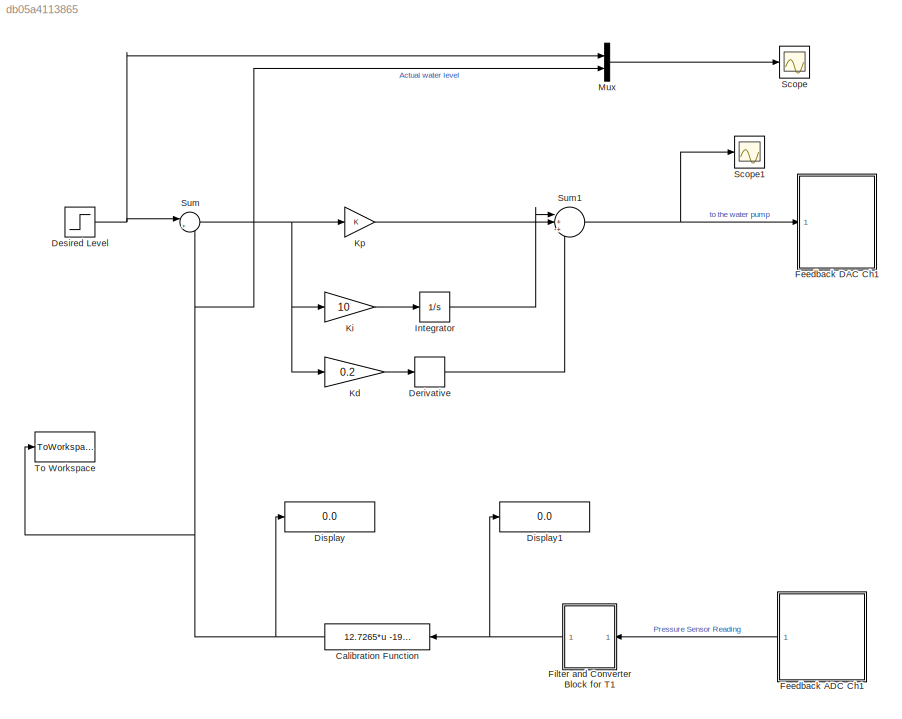
MODEL slx_db05a4113865
KIND model
CONFIG AbsTol = auto
CONFIG EnableMultiTasking = off
CONFIG FixedStep = auto
CONFIG MaxStep = auto
CONFIG MinStep = auto
CONFIG RelTol = 1e-3
CONFIG SampleTimeConstraint = Unconstrained
CONFIG Solver = VariableStepAuto
CONFIG SolverName = VariableStepAuto
CONFIG StartTime = 0.0
CONFIG StopTime = 300
BLOCK [Fcn] Calibration Function
  Expr = 12.7265*u -19.3407
BLOCK [Derivative] Derivative
BLOCK [Step] Desired Level
  After = 7
  SampleTime = 0
  Time = 0
BLOCK [Display] Display
  Decimation = 1
  Ports = [1]
BLOCK [Display] Display1
  Decimation = 1
  Ports = [1]
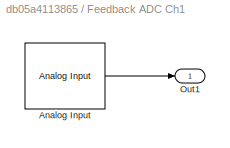
BLOCK [SubSystem] Feedback ADC Ch1
  Ports = [0, 1]
  RequestExecContextInheritance = off
BLOCK [Reference] Feedback ADC Ch1/Analog Input  REF=sldrtlib/Analog Input
  AttributesFormatString = Advantech\nPCI-1711 [auto]
  Ports = [0, 1]
  SourceBlock = sldrtlib/Analog Input
  SourceProductBaseCode = WT
  SourceProductName = Simulink Desktop Real-Time
  SourceType = Simulink Desktop Real-Time Analog Input
BLOCK [Outport] Feedback ADC Ch1/Out1
  IconDisplay = Port number
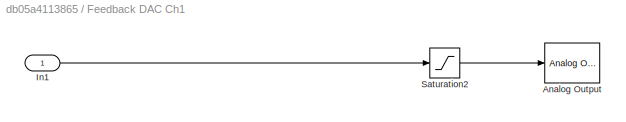
BLOCK [SubSystem] Feedback DAC Ch1
  Ports = [1]
  RequestExecContextInheritance = off
BLOCK [Reference] Feedback DAC Ch1/Analog Output  REF=sldrtlib/Analog Output
  AttributesFormatString = Advantech\nPCI-1711 [auto]
  Ports = [1]
  SourceBlock = sldrtlib/Analog Output
  SourceProductBaseCode = WT
  SourceProductName = Simulink Desktop Real-Time
  SourceType = Simulink Desktop Real-Time Analog Output
BLOCK [Inport] Feedback DAC Ch1/In1
  IconDisplay = Port number
BLOCK [Saturate] Feedback DAC Ch1/Saturation2
  InputPortMap = u0
  LowerLimit = 0
  Ports = [1, 1]
  UpperLimit = 5
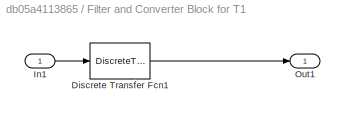
BLOCK [SubSystem] Filter and Converter Block for T1
  Ports = [1, 1]
  RequestExecContextInheritance = off
BLOCK [DiscreteTransferFcn] Filter and Converter Block for T1/Discrete Transfer Fcn1
  Denominator = [1 -0.9048]
  InputPortMap = u0
  Numerator = [0.09516]
  Ports = [1, 1]
  SampleTime = 0.1
BLOCK [Inport] Filter and Converter Block for T1/In1
  IconDisplay = Port number
BLOCK [Outport] Filter and Converter Block for T1/Out1
  IconDisplay = Port number
BLOCK [Integrator] Integrator
  Ports = [1, 1]
BLOCK [Gain] Kd
  Gain = 0.2
  OutDataTypeStr = Inherit: Inherit via internal rule
  ParamDataTypeStr = Inherit: Inherit via internal rule
  SaturateOnIntegerOverflow = off
BLOCK [Gain] Ki
  Gain = 10
  OutDataTypeStr = Inherit: Inherit via internal rule
  ParamDataTypeStr = Inherit: Inherit via internal rule
  SaturateOnIntegerOverflow = off
BLOCK [Gain] Kp
  OutDataTypeStr = Inherit: Inherit via internal rule
  ParamDataTypeStr = Inherit: Inherit via internal rule
  SaturateOnIntegerOverflow = off
BLOCK [Mux] Mux
  DisplayOption = bar
  Inputs = 2
  Ports = [2, 1]
BLOCK [Scope] Scope
  Floating = off
  NumInputPorts = 1
  Ports = [1]
  ScopeSpecificationString = Simulink.scopes.TimeScopeBlockCfg('CurrentConfiguration', extmgr.ConfigurationSet(extmgr.Configuration('Core','General UI',true),extmgr.Configuration('Core','Source UI',true),extmgr.Configuration('Sources','WiredSimulink',true),extmgr.Configuration('Visuals','Time Domain',true),extmgr.Configuration('Tools','Plot Navigation',true),extmgr.Configuration('Tools','Measurements',true)),'Version','2018a'...<+1ch>
BLOCK [Scope] Scope1
  Floating = off
  NumInputPorts = 1
  Ports = [1]
  ScopeSpecificationString = Simulink.scopes.TimeScopeBlockCfg('CurrentConfiguration', extmgr.ConfigurationSet(extmgr.Configuration('Core','General UI',true),extmgr.Configuration('Core','Source UI',true),extmgr.Configuration('Sources','WiredSimulink',true,'DataLoggingVariableName','ScopeData1'),extmgr.Configuration('Visuals','Time Domain',true),extmgr.Configuration('Tools','Plot Navigation',true),extmgr.Configuration('Tools',...<+40ch>
BLOCK [Sum] Sum
  IconShape = round
  InputSameDT = off
  Inputs = |+-
  OutDataTypeStr = Inherit: Inherit via internal rule
  Ports = [2, 1]
  SaturateOnIntegerOverflow = off
BLOCK [Sum] Sum1
  IconShape = round
  InputSameDT = off
  Inputs = |+++
  OutDataTypeStr = Inherit: Inherit via internal rule
  Ports = [3, 1]
  SaturateOnIntegerOverflow = off
BLOCK [ToWorkspace] To Workspace
  FixptAsFi = on
  MaxDataPoints = inf
  Ports = [1]
  SampleTime = -1
  Save2DSignal = 3-D array (concatenate along third dimension)
  SaveFormat = Timeseries
  VariableName = simout
NET Calibration Function:1 -> Display:1, Mux:2, Sum:2, To Workspace:1
LINE Derivative:1 -> Sum1:3
NET Desired Level:1 -> Mux:1, Sum:1
LINE Feedback ADC Ch1/Analog Input:1 -> Feedback ADC Ch1/Out1:1
LINE Feedback ADC Ch1:1 -> Filter and Converter Block for T1:1
LINE Feedback DAC Ch1/In1:1 -> Feedback DAC Ch1/Saturation2:1
LINE Feedback DAC Ch1/Saturation2:1 -> Feedback DAC Ch1/Analog Output:1
LINE Filter and Converter Block for T1/Discrete Transfer Fcn1:1 -> Filter and Converter Block for T1/Out1:1
LINE Filter and Converter Block for T1/In1:1 -> Filter and Converter Block for T1/Discrete Transfer Fcn1:1
NET Filter and Converter Block for T1:1 -> Calibration Function:1, Display1:1
LINE Integrator:1 -> Sum1:2
LINE Kd:1 -> Derivative:1
LINE Ki:1 -> Integrator:1
LINE Kp:1 -> Sum1:1
LINE Mux:1 -> Scope:1
NET Sum1:1 -> Feedback DAC Ch1:1, Scope1:1
NET Sum:1 -> Kd:1, Ki:1, Kp:1
note: NET lines group one-source signal fan-out (src -> all destinations, sorted); 1:1 wires keep LINE
